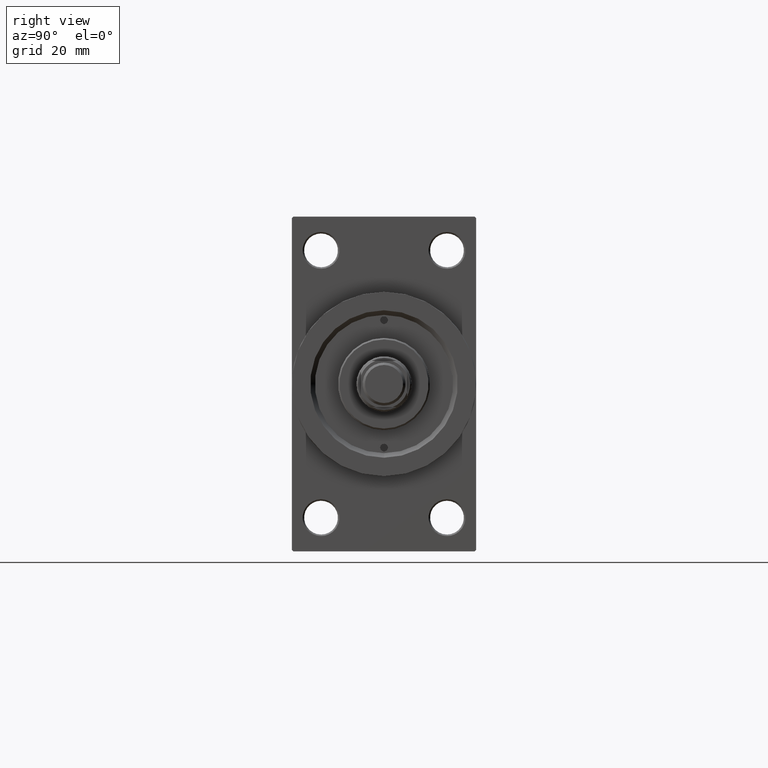
[diagram: clean part render]
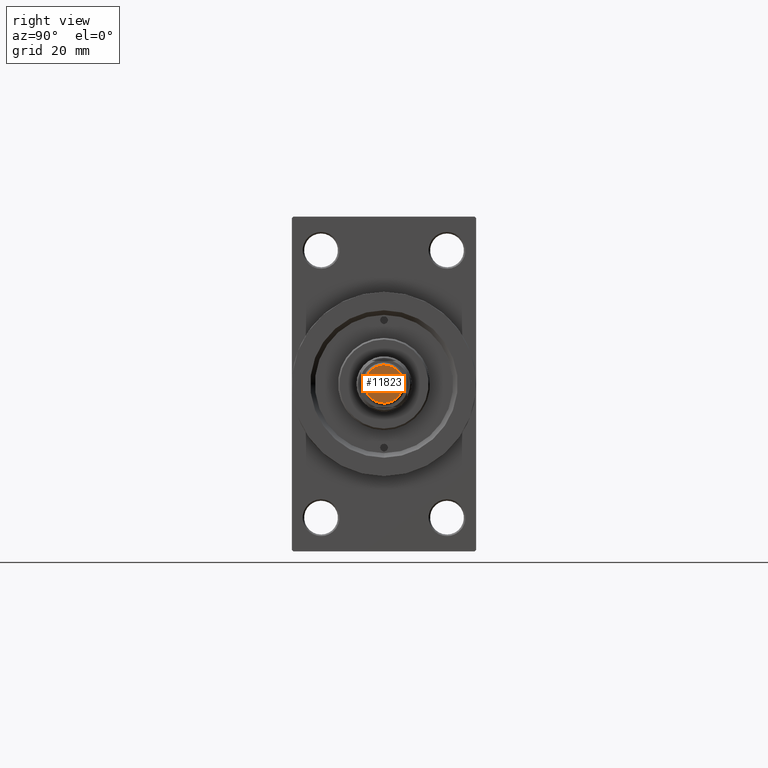
[diagram: same view with one face highlighted and labeled with its STEP entity id]
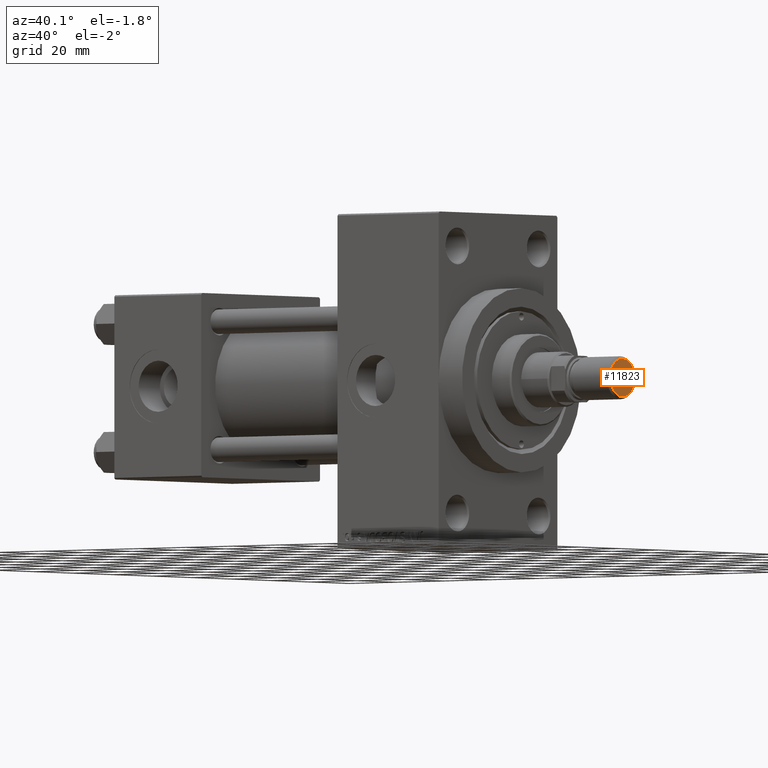
[diagram: same view with one face highlighted and labeled with its STEP entity id]
A machine part, right view. The second image highlights one B-rep face of the part: STEP entity #11823.
A second angle (auxiliary view) of the same face is appended — the face is thin or edge-on in the first view.
In plain terms, the highlighted planar face has unit normal (-1, 0, 0).
Its self-contained STEP definition (entity closure, byte-faithful):
#1812 = EDGE_CURVE ( 'NONE', #20405, #38722, #30240, .T. ) ;
#4007 = EDGE_CURVE ( 'NONE', #38722, #20405, #8637, .T. ) ;
#6422 = DIRECTION ( 'NONE',  ( -0.000000000000000000, -0.000000000000000000, -1.000000000000000000 ) ) ;
#6924 = DIRECTION ( 'NONE',  ( 1.000000000000000000, 0.000000000000000000, -0.000000000000000000 ) ) ;
#8011 = ORIENTED_EDGE ( 'NONE', *, *, #1812, .T. ) ;
#8637 = CIRCLE ( 'NONE', #42673, 6.199999999999995737 ) ;
#10795 = PLANE ( 'NONE',  #13545 ) ;
#10800 = ORIENTED_EDGE ( 'NONE', *, *, #4007, .T. ) ;
#11823 = ADVANCED_FACE ( 'NONE', ( #28485 ), #10795, .F. ) ;
#12159 = CARTESIAN_POINT ( 'NONE',  ( 6.199999999999995737, 0.000000000000000000, 0.000000000000000000 ) ) ;
#13545 = AXIS2_PLACEMENT_3D ( 'NONE', #47138, #47620, #6924 ) ;
#14641 = DIRECTION ( 'NONE',  ( 1.000000000000000000, 0.000000000000000000, 0.000000000000000000 ) ) ;
#15651 = DIRECTION ( 'NONE',  ( 1.000000000000000000, 0.000000000000000000, 0.000000000000000000 ) ) ;
#16126 = DIRECTION ( 'NONE',  ( -0.000000000000000000, -0.000000000000000000, -1.000000000000000000 ) ) ;
#20405 = VERTEX_POINT ( 'NONE', #34281 ) ;
#21291 = EDGE_LOOP ( 'NONE', ( #10800, #8011 ) ) ;
#24914 = AXIS2_PLACEMENT_3D ( 'NONE', #30431, #16126, #15651 ) ;
#28485 = FACE_OUTER_BOUND ( 'NONE', #21291, .T. ) ;
#30240 = CIRCLE ( 'NONE', #24914, 6.199999999999995737 ) ;
#30431 = CARTESIAN_POINT ( 'NONE',  ( 0.000000000000000000, 0.000000000000000000, 0.000000000000000000 ) ) ;
#34281 = CARTESIAN_POINT ( 'NONE',  ( -6.199999999999995737, 8.082668874372528061E-16, 0.000000000000000000 ) ) ;
#38722 = VERTEX_POINT ( 'NONE', #12159 ) ;
#40554 = CARTESIAN_POINT ( 'NONE',  ( 0.000000000000000000, 0.000000000000000000, 0.000000000000000000 ) ) ;
#42673 = AXIS2_PLACEMENT_3D ( 'NONE', #40554, #6422, #14641 ) ;
#47138 = CARTESIAN_POINT ( 'NONE',  ( 0.000000000000000000, 0.000000000000000000, 0.000000000000000000 ) ) ;
#47620 = DIRECTION ( 'NONE',  ( 0.000000000000000000, 0.000000000000000000, 1.000000000000000000 ) ) ;